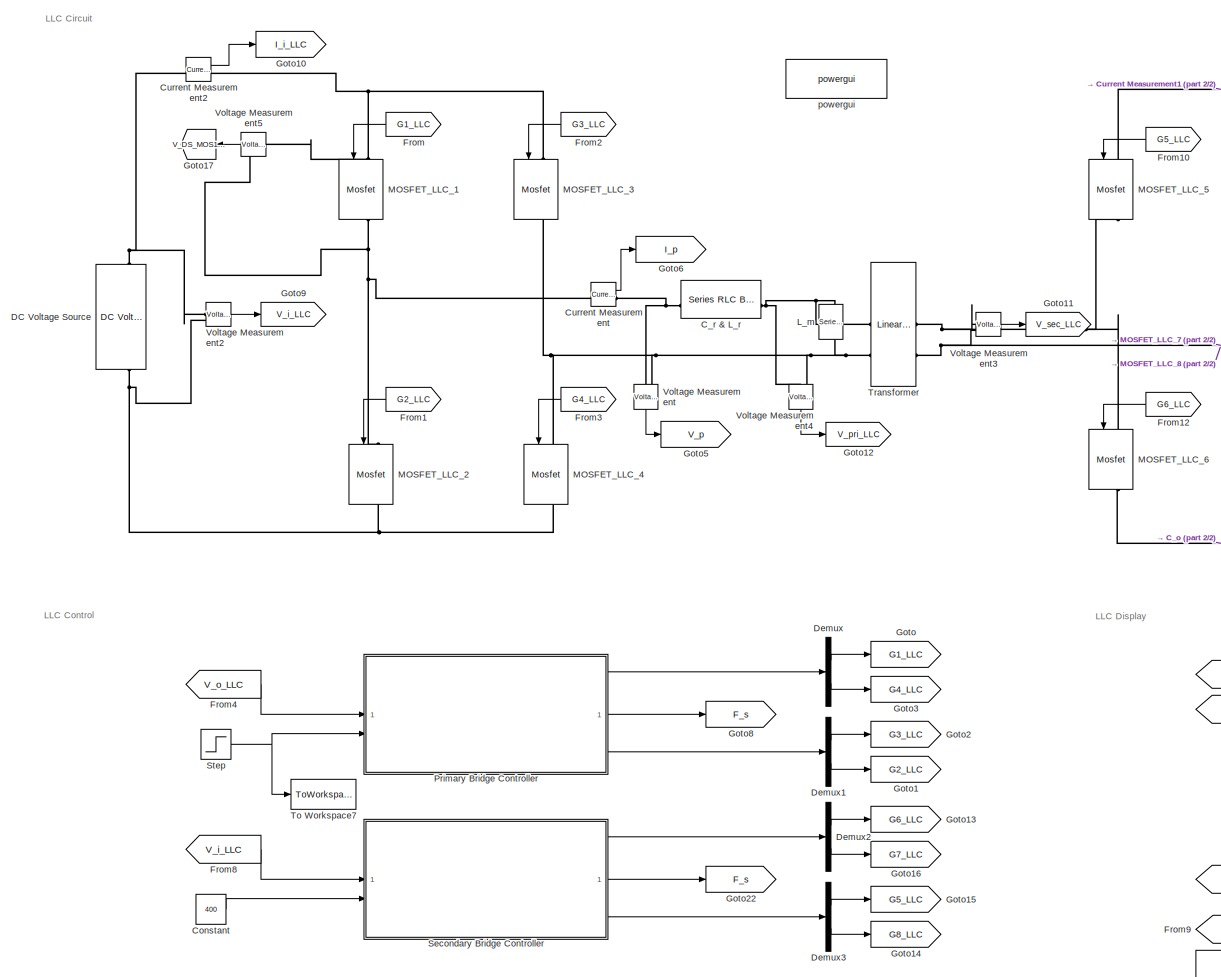
[diagram: root canvas - part 1/2, left side, full height]
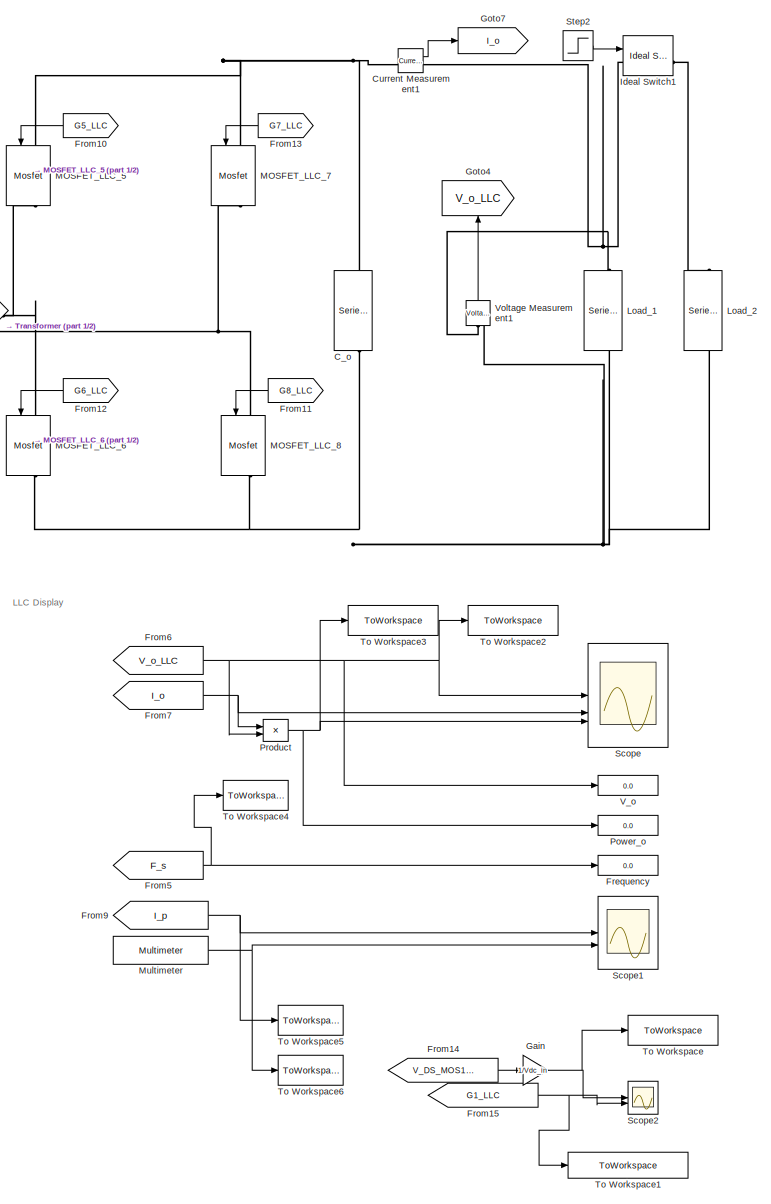
[diagram: root canvas - part 2/2, right side, full height]
MODEL slx_412a52aed63e
KIND model
CONFIG AbsTol = auto
CONFIG EnableMultiTasking = on
CONFIG FixedStep = Ts_Power
CONFIG MaxStep = auto
CONFIG MinStep = auto
CONFIG RelTol = 1e-3
CONFIG SampleTimeConstraint = Unconstrained
CONFIG SolverName = FixedStepDiscrete
CONFIG StartTime = 0.0
CONFIG StopTime = 0.3
BLOCK [Reference] C_o  REF=spsSeriesRLCBranchLib/Series RLC Branch
  LibrarySourceBlock = sps_lib/Passives/Series RLC Branch
  NameLocation = left
  SourceBlock = spsSeriesRLCBranchLib/Series RLC Branch
  SourceType = Series RLC Branch
BLOCK [Reference] C_r & L_r  REF=spsSeriesRLCBranchLib/Series RLC Branch
  LibrarySourceBlock = sps_lib/Passives/Series RLC Branch
  SourceBlock = spsSeriesRLCBranchLib/Series RLC Branch
  SourceType = Series RLC Branch
BLOCK [Constant] Constant
  Commented = on
  SampleTime = Ts_Power
  Value = 400
BLOCK [Reference] Current Measurement  REF=spsCurrentMeasurementLib/Current Measurement
  LibrarySourceBlock = sps_lib/Sensors and Measurements/Current Measurement
  SourceBlock = spsCurrentMeasurementLib/Current Measurement
  SourceType = Current Measurement
  UserDataPersistent = on
BLOCK [Reference] Current Measurement1  REF=spsCurrentMeasurementLib/Current Measurement
  LibrarySourceBlock = sps_lib/Sensors and Measurements/Current Measurement
  SourceBlock = spsCurrentMeasurementLib/Current Measurement
  SourceType = Current Measurement
  UserDataPersistent = on
BLOCK [Reference] Current Measurement2  REF=spsCurrentMeasurementLib/Current Measurement
  LibrarySourceBlock = sps_lib/Sensors and Measurements/Current Measurement
  SourceBlock = spsCurrentMeasurementLib/Current Measurement
  SourceType = Current Measurement
  UserDataPersistent = on
BLOCK [Reference] DC Voltage Source  REF=spsDCVoltageSourceLib/DC Voltage Source
  LibrarySourceBlock = sps_lib/Sources/DC Voltage Source
  SourceBlock = spsDCVoltageSourceLib/DC Voltage Source
  SourceType = DC Voltage Source
BLOCK [Demux] Demux
  Outputs = 2
BLOCK [Demux] Demux1
  Outputs = 2
BLOCK [Demux] Demux2
  Commented = on
  Outputs = 2
BLOCK [Demux] Demux3
  Commented = on
  Outputs = 2
BLOCK [Display] Frequency
  Decimation = 1
BLOCK [From] From
  GotoTag = G1_LLC
  NameLocation = top
BLOCK [From] From1
  GotoTag = G2_LLC
  NameLocation = top
BLOCK [From] From10
  Commented = on
  GotoTag = G5_LLC
  NameLocation = top
BLOCK [From] From11
  Commented = on
  GotoTag = G8_LLC
  NameLocation = top
BLOCK [From] From12
  Commented = on
  GotoTag = G6_LLC
  NameLocation = top
BLOCK [From] From13
  Commented = on
  GotoTag = G7_LLC
  NameLocation = top
BLOCK [From] From14
  GotoTag = V_DS_MOS1_LLC
BLOCK [From] From15
  GotoTag = G1_LLC
BLOCK [From] From2
  GotoTag = G3_LLC
  NameLocation = top
BLOCK [From] From3
  GotoTag = G4_LLC
  NameLocation = top
BLOCK [From] From4
  GotoTag = V_o_LLC
BLOCK [From] From5
  GotoTag = F_s
BLOCK [From] From6
  GotoTag = V_o_LLC
BLOCK [From] From7
  GotoTag = I_o
BLOCK [From] From8
  Commented = on
  GotoTag = V_i_LLC
BLOCK [From] From9
  GotoTag = I_p
BLOCK [Gain] Gain
  Gain = 1/Vdc_in
BLOCK [Goto] Goto
  GotoTag = G1_LLC
BLOCK [Goto] Goto1
  GotoTag = G2_LLC
BLOCK [Goto] Goto10
  GotoTag = I_i_LLC
BLOCK [Goto] Goto11
  GotoTag = V_sec_LLC
BLOCK [Goto] Goto12
  GotoTag = V_pri_LLC
BLOCK [Goto] Goto13
  Commented = on
  GotoTag = G6_LLC
BLOCK [Goto] Goto14
  Commented = on
  GotoTag = G8_LLC
BLOCK [Goto] Goto15
  Commented = on
  GotoTag = G5_LLC
BLOCK [Goto] Goto16
  Commented = on
  GotoTag = G7_LLC
BLOCK [Goto] Goto17
  GotoTag = V_DS_MOS1_LLC
  NameLocation = top
BLOCK [Goto] Goto2
  GotoTag = G3_LLC
BLOCK [Goto] Goto22
  Commented = on
  GotoTag = F_s
BLOCK [Goto] Goto3
  GotoTag = G4_LLC
BLOCK [Goto] Goto4
  GotoTag = V_o_LLC
  NameLocation = right
BLOCK [Goto] Goto5
  GotoTag = V_p
BLOCK [Goto] Goto6
  GotoTag = I_p
BLOCK [Goto] Goto7
  GotoTag = I_o
BLOCK [Goto] Goto8
  GotoTag = F_s
BLOCK [Goto] Goto9
  GotoTag = V_i_LLC
BLOCK [Reference] Ideal Switch1  REF=spsIdealSwitchLib/Ideal Switch
  SourceBlock = spsIdealSwitchLib/Ideal Switch
  SourceType = Ideal Switch
BLOCK [Reference] L_m  REF=spsSeriesRLCBranchLib/Series RLC Branch
  LibrarySourceBlock = sps_lib/Passives/Series RLC Branch
  NameLocation = left
  SourceBlock = spsSeriesRLCBranchLib/Series RLC Branch
  SourceType = Series RLC Branch
BLOCK [Reference] Load_1  REF=spsSeriesRLCBranchLib/Series RLC Branch
  LibrarySourceBlock = sps_lib/Passives/Series RLC Branch
  NameLocation = left
  SourceBlock = spsSeriesRLCBranchLib/Series RLC Branch
  SourceType = Series RLC Branch
BLOCK [Reference] Load_2  REF=spsSeriesRLCBranchLib/Series RLC Branch
  LibrarySourceBlock = sps_lib/Passives/Series RLC Branch
  NameLocation = left
  SourceBlock = spsSeriesRLCBranchLib/Series RLC Branch
  SourceType = Series RLC Branch
BLOCK [Reference] MOSFET_LLC_1  REF=spsMosfetLib/Mosfet
  LibrarySourceBlock = sps_lib/Power Electronics/Mosfet
  NameLocation = left
  SourceBlock = spsMosfetLib/Mosfet
  SourceType = Mosfet
BLOCK [Reference] MOSFET_LLC_2  REF=spsMosfetLib/Mosfet
  LibrarySourceBlock = sps_lib/Power Electronics/Mosfet
  NameLocation = left
  SourceBlock = spsMosfetLib/Mosfet
  SourceType = Mosfet
BLOCK [Reference] MOSFET_LLC_3  REF=spsMosfetLib/Mosfet
  LibrarySourceBlock = sps_lib/Power Electronics/Mosfet
  NameLocation = left
  SourceBlock = spsMosfetLib/Mosfet
  SourceType = Mosfet
BLOCK [Reference] MOSFET_LLC_4  REF=spsMosfetLib/Mosfet
  LibrarySourceBlock = sps_lib/Power Electronics/Mosfet
  NameLocation = left
  SourceBlock = spsMosfetLib/Mosfet
  SourceType = Mosfet
BLOCK [Reference] MOSFET_LLC_5  REF=spsMosfetLib/Mosfet
  LibrarySourceBlock = sps_lib/Power Electronics/Mosfet
  NameLocation = left
  SourceBlock = spsMosfetLib/Mosfet
  SourceType = Mosfet
BLOCK [Reference] MOSFET_LLC_6  REF=spsMosfetLib/Mosfet
  LibrarySourceBlock = sps_lib/Power Electronics/Mosfet
  NameLocation = left
  SourceBlock = spsMosfetLib/Mosfet
  SourceType = Mosfet
BLOCK [Reference] MOSFET_LLC_7  REF=spsMosfetLib/Mosfet
  LibrarySourceBlock = sps_lib/Power Electronics/Mosfet
  NameLocation = left
  SourceBlock = spsMosfetLib/Mosfet
  SourceType = Mosfet
BLOCK [Reference] MOSFET_LLC_8  REF=spsMosfetLib/Mosfet
  LibrarySourceBlock = sps_lib/Power Electronics/Mosfet
  NameLocation = left
  SourceBlock = spsMosfetLib/Mosfet
  SourceType = Mosfet
BLOCK [Reference] Multimeter  REF=spsMultimeterLib/Multimeter
  LibrarySourceBlock = sps_lib/Sensors and Measurements/Multimeter
  SourceBlock = spsMultimeterLib/Multimeter
  SourceType = Multimeter
BLOCK [Display] Power_o
  Decimation = 1
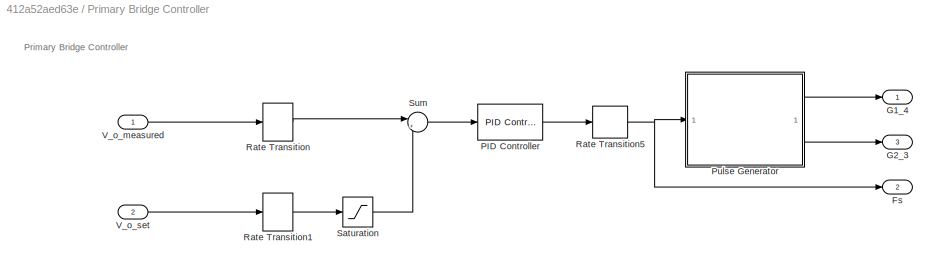
BLOCK [SubSystem] Primary Bridge Controller
BLOCK [Outport] Primary Bridge Controller/Fs
  Port = 2
BLOCK [Outport] Primary Bridge Controller/G1_4
BLOCK [Outport] Primary Bridge Controller/G2_3
  Port = 3
BLOCK [Reference] Primary Bridge Controller/PID Controller  REF=slpidlib/PID Controller
  LibrarySourceBlock = simulink/Continuous/PID Controller
  SourceBlock = slpidlib/PID Controller
  SourceType = PID 1dof
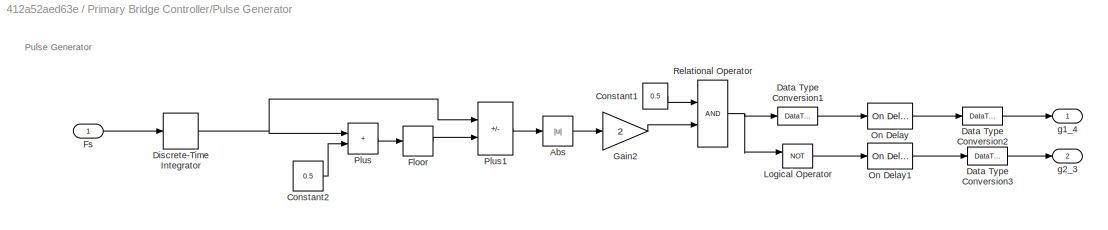
BLOCK [SubSystem] Primary Bridge Controller/Pulse Generator
BLOCK [Abs] Primary Bridge Controller/Pulse Generator/Abs
  SaturateOnIntegerOverflow = off
BLOCK [Constant] Primary Bridge Controller/Pulse Generator/Constant1
  Value = 0.5
BLOCK [Constant] Primary Bridge Controller/Pulse Generator/Constant2
  Value = 0.5
BLOCK [DataTypeConversion] Primary Bridge Controller/Pulse Generator/Data Type Conversion1
  OutDataTypeStr = double
  RndMeth = Floor
  SaturateOnIntegerOverflow = off
BLOCK [DataTypeConversion] Primary Bridge Controller/Pulse Generator/Data Type Conversion2
  OutDataTypeStr = double
  RndMeth = Floor
  SaturateOnIntegerOverflow = off
BLOCK [DataTypeConversion] Primary Bridge Controller/Pulse Generator/Data Type Conversion3
  OutDataTypeStr = double
  RndMeth = Floor
  SaturateOnIntegerOverflow = off
BLOCK [DiscreteIntegrator] Primary Bridge Controller/Pulse Generator/Discrete-Time Integrator
  ICPrevOutput = DiscIntNeverNeededParam
  ICPrevScaledInput = DiscIntNeverNeededParam
  InitialConditionSetting = Auto
  SampleTime = Ts_Power
BLOCK [Rounding] Primary Bridge Controller/Pulse Generator/Floor
BLOCK [Inport] Primary Bridge Controller/Pulse Generator/Fs
BLOCK [Gain] Primary Bridge Controller/Pulse Generator/Gain2
  Gain = 2
  OutDataTypeStr = Inherit: Same as input
  ParamDataTypeStr = Inherit: Same as input
  SaturateOnIntegerOverflow = on
BLOCK [Logic] Primary Bridge Controller/Pulse Generator/Logical Operator
  AllPortsSameDT = off
  Operator = NOT
  OutDataTypeStr = float('double')
BLOCK [Reference] Primary Bridge Controller/Pulse Generator/On Delay  REF=spsOnDelayLib/On Delay
  NameLocation = top
  SourceBlock = spsOnDelayLib/On Delay
  SourceType = On/Off Delay
BLOCK [Reference] Primary Bridge Controller/Pulse Generator/On Delay1  REF=spsOnDelayLib/On Delay
  NameLocation = top
  SourceBlock = spsOnDelayLib/On Delay
  SourceType = On/Off Delay
BLOCK [Sum] Primary Bridge Controller/Pulse Generator/Plus
  IconShape = rectangular
BLOCK [Sum] Primary Bridge Controller/Pulse Generator/Plus1
  IconShape = rectangular
  Inputs = +-
BLOCK [RelationalOperator] Primary Bridge Controller/Pulse Generator/Relational Operator
  InputSameDT = off
  OutDataTypeStr = boolean
BLOCK [Outport] Primary Bridge Controller/Pulse Generator/g1_4
  VectorParamsAs1DForOutWhenUnconnected = off
BLOCK [Outport] Primary Bridge Controller/Pulse Generator/g2_3
  Port = 2
  VectorParamsAs1DForOutWhenUnconnected = off
BLOCK [RateTransition] Primary Bridge Controller/Rate Transition
  OutPortSampleTime = Ts_Control
BLOCK [RateTransition] Primary Bridge Controller/Rate Transition1
  OutPortSampleTime = Ts_Control
BLOCK [RateTransition] Primary Bridge Controller/Rate Transition5
  InitialCondition = fs_LCC_min
  OutPortSampleTime = Ts_Power
BLOCK [Saturate] Primary Bridge Controller/Saturation
  LowerLimit = V_o_min
  UpperLimit = V_o_max
BLOCK [Sum] Primary Bridge Controller/Sum
  Inputs = |+-
BLOCK [Inport] Primary Bridge Controller/V_o_measured
BLOCK [Inport] Primary Bridge Controller/V_o_set
  Port = 2
BLOCK [Product] Product
BLOCK [Scope] Scope
  Floating = off
  NumInputPorts = 3
  ScopeSpecificationString = Simulink.scopes.TimeScopeBlockCfg('CurrentConfiguration', extmgr.ConfigurationSet(extmgr.Configuration('Core','General UI',true),extmgr.Configuration('Core','Source UI',true),extmgr.Configuration('Sources','WiredSimulink',true),extmgr.Configuration('Visuals','Time Domain',true,'SerializedDisplays',{struct('MinYLimReal','253.02473','MaxYLimReal','471.96113','YLabelReal','','MinYLimMag','253.02473',...<+3110ch>
BLOCK [Scope] Scope1
  Floating = off
  NumInputPorts = 2
  ScopeSpecificationString = Simulink.scopes.TimeScopeBlockCfg('CurrentConfiguration', extmgr.ConfigurationSet(extmgr.Configuration('Core','General UI',true),extmgr.Configuration('Core','Source UI',true),extmgr.Configuration('Sources','WiredSimulink',true,'DataLoggingVariableName','ScopeData1'),extmgr.Configuration('Visuals','Time Domain',true,'SerializedDisplays',{struct('MinYLimReal','-46.47559','MaxYLimReal','49.43409','YL...<+1590ch>
BLOCK [Scope] Scope2
  Floating = off
  NumInputPorts = 2
  ScopeSpecificationString = Simulink.scopes.TimeScopeBlockCfg('CurrentConfiguration', extmgr.ConfigurationSet(extmgr.Configuration('Core','General UI',true),extmgr.Configuration('Core','Source UI',true),extmgr.Configuration('Sources','WiredSimulink',true,'DataLoggingVariableName','ScopeData2'),extmgr.Configuration('Visuals','Time Domain',true,'SerializedDisplays',{struct('MinYLimReal','-0.13059','MaxYLimReal','1.1304','YLabe...<+1529ch>
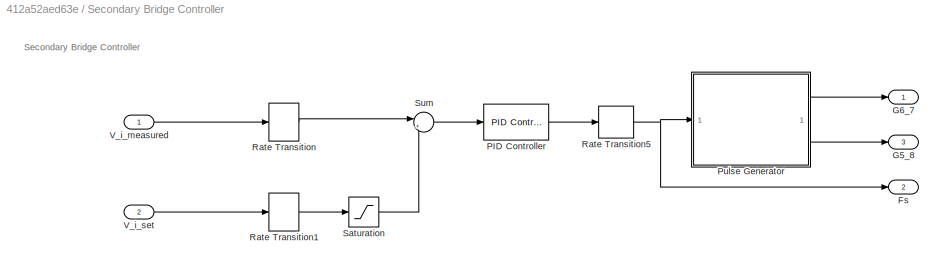
BLOCK [SubSystem] Secondary Bridge Controller
  Commented = on
BLOCK [Outport] Secondary Bridge Controller/Fs
  Port = 2
BLOCK [Outport] Secondary Bridge Controller/G5_8
  Port = 3
BLOCK [Outport] Secondary Bridge Controller/G6_7
BLOCK [Reference] Secondary Bridge Controller/PID Controller  REF=slpidlib/PID Controller
  LibrarySourceBlock = simulink/Continuous/PID Controller
  SourceBlock = slpidlib/PID Controller
  SourceType = PID 1dof
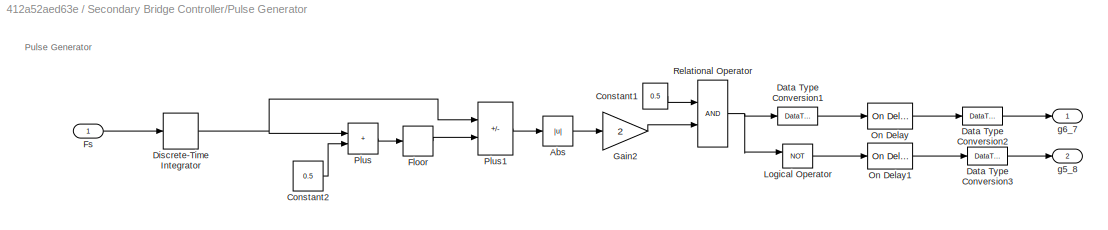
BLOCK [SubSystem] Secondary Bridge Controller/Pulse Generator
BLOCK [Abs] Secondary Bridge Controller/Pulse Generator/Abs
  SaturateOnIntegerOverflow = off
BLOCK [Constant] Secondary Bridge Controller/Pulse Generator/Constant1
  Value = 0.5
BLOCK [Constant] Secondary Bridge Controller/Pulse Generator/Constant2
  Value = 0.5
BLOCK [DataTypeConversion] Secondary Bridge Controller/Pulse Generator/Data Type Conversion1
  OutDataTypeStr = double
  RndMeth = Floor
  SaturateOnIntegerOverflow = off
BLOCK [DataTypeConversion] Secondary Bridge Controller/Pulse Generator/Data Type Conversion2
  OutDataTypeStr = double
  RndMeth = Floor
  SaturateOnIntegerOverflow = off
BLOCK [DataTypeConversion] Secondary Bridge Controller/Pulse Generator/Data Type Conversion3
  OutDataTypeStr = double
  RndMeth = Floor
  SaturateOnIntegerOverflow = off
BLOCK [DiscreteIntegrator] Secondary Bridge Controller/Pulse Generator/Discrete-Time Integrator
  ICPrevOutput = DiscIntNeverNeededParam
  ICPrevScaledInput = DiscIntNeverNeededParam
  InitialConditionSetting = Auto
  SampleTime = Ts_Power
BLOCK [Rounding] Secondary Bridge Controller/Pulse Generator/Floor
BLOCK [Inport] Secondary Bridge Controller/Pulse Generator/Fs
BLOCK [Gain] Secondary Bridge Controller/Pulse Generator/Gain2
  Gain = 2
  OutDataTypeStr = Inherit: Same as input
  ParamDataTypeStr = Inherit: Same as input
  SaturateOnIntegerOverflow = on
BLOCK [Logic] Secondary Bridge Controller/Pulse Generator/Logical Operator
  AllPortsSameDT = off
  Operator = NOT
  OutDataTypeStr = float('double')
BLOCK [Reference] Secondary Bridge Controller/Pulse Generator/On Delay  REF=spsOnDelayLib/On Delay
  NameLocation = top
  SourceBlock = spsOnDelayLib/On Delay
  SourceType = On/Off Delay
BLOCK [Reference] Secondary Bridge Controller/Pulse Generator/On Delay1  REF=spsOnDelayLib/On Delay
  NameLocation = top
  SourceBlock = spsOnDelayLib/On Delay
  SourceType = On/Off Delay
BLOCK [Sum] Secondary Bridge Controller/Pulse Generator/Plus
  IconShape = rectangular
BLOCK [Sum] Secondary Bridge Controller/Pulse Generator/Plus1
  IconShape = rectangular
  Inputs = +-
BLOCK [RelationalOperator] Secondary Bridge Controller/Pulse Generator/Relational Operator
  InputSameDT = off
  OutDataTypeStr = boolean
BLOCK [Outport] Secondary Bridge Controller/Pulse Generator/g5_8
  Port = 2
  VectorParamsAs1DForOutWhenUnconnected = off
BLOCK [Outport] Secondary Bridge Controller/Pulse Generator/g6_7
  VectorParamsAs1DForOutWhenUnconnected = off
BLOCK [RateTransition] Secondary Bridge Controller/Rate Transition
  OutPortSampleTime = Ts_Control
BLOCK [RateTransition] Secondary Bridge Controller/Rate Transition1
  OutPortSampleTime = Ts_Control
BLOCK [RateTransition] Secondary Bridge Controller/Rate Transition5
  InitialCondition = fs_LCC_min
  OutPortSampleTime = Ts_Power
BLOCK [Saturate] Secondary Bridge Controller/Saturation
  LowerLimit = V_o_min
  UpperLimit = V_o_max
BLOCK [Sum] Secondary Bridge Controller/Sum
  Inputs = |+-
BLOCK [Inport] Secondary Bridge Controller/V_i_measured
BLOCK [Inport] Secondary Bridge Controller/V_i_set
  Port = 2
BLOCK [Step] Step
  After = 450
  Before = 275
  SampleTime = Ts_Power
  Time = 0.1
BLOCK [Step] Step2
  NameLocation = top
  SampleTime = Ts_Power
  Time = 0.2
BLOCK [ToWorkspace] To Workspace
  FixptAsFi = on
  MaxDataPoints = inf
  SampleTime = -1
  SaveFormat = Structure With Time
  VariableName = V_DS_M1
BLOCK [ToWorkspace] To Workspace1
  FixptAsFi = on
  MaxDataPoints = inf
  SampleTime = -1
  SaveFormat = Structure With Time
  VariableName = V_GS_M1
BLOCK [ToWorkspace] To Workspace2
  FixptAsFi = on
  MaxDataPoints = inf
  SampleTime = -1
  SaveFormat = Structure With Time
  VariableName = V_o
BLOCK [ToWorkspace] To Workspace3
  FixptAsFi = on
  MaxDataPoints = inf
  SampleTime = -1
  SaveFormat = Structure With Time
  VariableName = P_o
BLOCK [ToWorkspace] To Workspace4
  FixptAsFi = on
  MaxDataPoints = inf
  SampleTime = -1
  SaveFormat = Structure With Time
  VariableName = F_s
BLOCK [ToWorkspace] To Workspace5
  FixptAsFi = on
  MaxDataPoints = inf
  SampleTime = -1
  SaveFormat = Structure With Time
  VariableName = I_r
BLOCK [ToWorkspace] To Workspace6
  FixptAsFi = on
  MaxDataPoints = inf
  SampleTime = -1
  SaveFormat = Structure With Time
  VariableName = I_m
BLOCK [ToWorkspace] To Workspace7
  FixptAsFi = on
  MaxDataPoints = inf
  SampleTime = -1
  SaveFormat = Structure With Time
  VariableName = V_ref
BLOCK [Reference] Transformer  REF=spsLinearTransformerLib/Linear Transformer
  LibrarySourceBlock = sps_lib/Power Grid Elements/Linear Transformer
  SourceBlock = spsLinearTransformerLib/Linear Transformer
  SourceType = Linear Transformer
BLOCK [Display] V_o
  Decimation = 1
BLOCK [Reference] Voltage Measurement  REF=spsVoltageMeasurementLib/Voltage Measurement
  LibrarySourceBlock = sps_lib/Sensors and Measurements/Voltage Measurement
  NameLocation = left
  SourceBlock = spsVoltageMeasurementLib/Voltage Measurement
  SourceType = Voltage Measurement
  UserDataPersistent = on
BLOCK [Reference] Voltage Measurement1  REF=spsVoltageMeasurementLib/Voltage Measurement
  LibrarySourceBlock = sps_lib/Sensors and Measurements/Voltage Measurement
  NameLocation = right
  SourceBlock = spsVoltageMeasurementLib/Voltage Measurement
  SourceType = Voltage Measurement
  UserDataPersistent = on
BLOCK [Reference] Voltage Measurement2  REF=spsVoltageMeasurementLib/Voltage Measurement
  LibrarySourceBlock = sps_lib/Sensors and Measurements/Voltage Measurement
  SourceBlock = spsVoltageMeasurementLib/Voltage Measurement
  SourceType = Voltage Measurement
  UserDataPersistent = on
BLOCK [Reference] Voltage Measurement3  REF=spsVoltageMeasurementLib/Voltage Measurement
  LibrarySourceBlock = sps_lib/Sensors and Measurements/Voltage Measurement
  SourceBlock = spsVoltageMeasurementLib/Voltage Measurement
  SourceType = Voltage Measurement
  UserDataPersistent = on
BLOCK [Reference] Voltage Measurement4  REF=spsVoltageMeasurementLib/Voltage Measurement
  LibrarySourceBlock = sps_lib/Sensors and Measurements/Voltage Measurement
  NameLocation = left
  SourceBlock = spsVoltageMeasurementLib/Voltage Measurement
  SourceType = Voltage Measurement
  UserDataPersistent = on
BLOCK [Reference] Voltage Measurement5  REF=spsVoltageMeasurementLib/Voltage Measurement
  LibrarySourceBlock = sps_lib/Sensors and Measurements/Voltage Measurement
  NameLocation = top
  SourceBlock = spsVoltageMeasurementLib/Voltage Measurement
  SourceType = Voltage Measurement
  UserDataPersistent = on
BLOCK [Reference] powergui  REF=spspowerguiLib/powergui
  Priority = 1
  SourceBlock = spspowerguiLib/powergui
  SourceType = PSB option menu block
ANNOTATION (root): LLC Circuit
ANNOTATION (root): LLC Control
ANNOTATION (root): LLC Display
ANNOTATION Primary Bridge Controller: Primary Bridge Controller
ANNOTATION Primary Bridge Controller/Pulse Generator: Pulse Generator
ANNOTATION Secondary Bridge Controller: Secondary Bridge Controller
ANNOTATION Secondary Bridge Controller/Pulse Generator: Pulse Generator
LINE Constant:1 -> Secondary Bridge Controller:2
LINE Current Measurement1:1 -> Goto7:1
LINE Current Measurement2:1 -> Goto10:1
LINE Current Measurement:1 -> Goto6:1
LINE Demux1:1 -> Goto2:1
LINE Demux1:2 -> Goto1:1
LINE Demux2:1 -> Goto13:1
LINE Demux2:2 -> Goto16:1
LINE Demux3:1 -> Goto15:1
LINE Demux3:2 -> Goto14:1
LINE Demux:1 -> Goto:1
LINE Demux:2 -> Goto3:1
LINE From10:1 -> MOSFET_LLC_5:1
LINE From11:1 -> MOSFET_LLC_8:1
LINE From12:1 -> MOSFET_LLC_6:1
LINE From13:1 -> MOSFET_LLC_7:1
LINE From14:1 -> Gain:1
NET From15:1 -> Scope2:2, To Workspace1:1
LINE From1:1 -> MOSFET_LLC_2:1
LINE From2:1 -> MOSFET_LLC_3:1
LINE From3:1 -> MOSFET_LLC_4:1
LINE From4:1 -> Primary Bridge Controller:1
NET From5:1 -> Frequency:1, To Workspace4:1
NET From6:1 -> Product:2, Scope:1, To Workspace2:1, V_o:1
NET From7:1 -> Product:1, Scope:2
LINE From8:1 -> Secondary Bridge Controller:1
NET From9:1 -> Scope1:1, To Workspace5:1
LINE From:1 -> MOSFET_LLC_1:1
NET Gain:1 -> Scope2:1, To Workspace:1
NET Multimeter:1 -> Scope1:2, To Workspace6:1
LINE Primary Bridge Controller/PID Controller:1 -> Primary Bridge Controller/Rate Transition5:1
LINE Primary Bridge Controller/Pulse Generator/Abs:1 -> Primary Bridge Controller/Pulse Generator/Gain2:1
LINE Primary Bridge Controller/Pulse Generator/Constant1:1 -> Primary Bridge Controller/Pulse Generator/Relational Operator:1
LINE Primary Bridge Controller/Pulse Generator/Constant2:1 -> Primary Bridge Controller/Pulse Generator/Plus:2
LINE Primary Bridge Controller/Pulse Generator/Data Type Conversion1:1 -> Primary Bridge Controller/Pulse Generator/On Delay:1
LINE Primary Bridge Controller/Pulse Generator/Data Type Conversion2:1 -> Primary Bridge Controller/Pulse Generator/g1_4:1
LINE Primary Bridge Controller/Pulse Generator/Data Type Conversion3:1 -> Primary Bridge Controller/Pulse Generator/g2_3:1
NET Primary Bridge Controller/Pulse Generator/Discrete-Time Integrator:1 -> Primary Bridge Controller/Pulse Generator/Plus1:1, Primary Bridge Controller/Pulse Generator/Plus:1
LINE Primary Bridge Controller/Pulse Generator/Floor:1 -> Primary Bridge Controller/Pulse Generator/Plus1:2
LINE Primary Bridge Controller/Pulse Generator/Fs:1 -> Primary Bridge Controller/Pulse Generator/Discrete-Time Integrator:1
LINE Primary Bridge Controller/Pulse Generator/Gain2:1 -> Primary Bridge Controller/Pulse Generator/Relational Operator:2
LINE Primary Bridge Controller/Pulse Generator/Logical Operator:1 -> Primary Bridge Controller/Pulse Generator/On Delay1:1
LINE Primary Bridge Controller/Pulse Generator/On Delay1:1 -> Primary Bridge Controller/Pulse Generator/Data Type Conversion3:1
LINE Primary Bridge Controller/Pulse Generator/On Delay:1 -> Primary Bridge Controller/Pulse Generator/Data Type Conversion2:1
LINE Primary Bridge Controller/Pulse Generator/Plus1:1 -> Primary Bridge Controller/Pulse Generator/Abs:1
LINE Primary Bridge Controller/Pulse Generator/Plus:1 -> Primary Bridge Controller/Pulse Generator/Floor:1
NET Primary Bridge Controller/Pulse Generator/Relational Operator:1 -> Primary Bridge Controller/Pulse Generator/Data Type Conversion1:1, Primary Bridge Controller/Pulse Generator/Logical Operator:1
LINE Primary Bridge Controller/Pulse Generator:1 -> Primary Bridge Controller/G1_4:1
LINE Primary Bridge Controller/Pulse Generator:2 -> Primary Bridge Controller/G2_3:1
LINE Primary Bridge Controller/Rate Transition1:1 -> Primary Bridge Controller/Saturation:1
NET Primary Bridge Controller/Rate Transition5:1 -> Primary Bridge Controller/Fs:1, Primary Bridge Controller/Pulse Generator:1
LINE Primary Bridge Controller/Rate Transition:1 -> Primary Bridge Controller/Sum:1
LINE Primary Bridge Controller/Saturation:1 -> Primary Bridge Controller/Sum:2
LINE Primary Bridge Controller/Sum:1 -> Primary Bridge Controller/PID Controller:1
LINE Primary Bridge Controller/V_o_measured:1 -> Primary Bridge Controller/Rate Transition:1
LINE Primary Bridge Controller/V_o_set:1 -> Primary Bridge Controller/Rate Transition1:1
LINE Primary Bridge Controller:1 -> Demux:1
LINE Primary Bridge Controller:2 -> Goto8:1
LINE Primary Bridge Controller:3 -> Demux1:1
NET Product:1 -> Power_o:1, Scope:3, To Workspace3:1
LINE Secondary Bridge Controller/PID Controller:1 -> Secondary Bridge Controller/Rate Transition5:1
LINE Secondary Bridge Controller/Pulse Generator/Abs:1 -> Secondary Bridge Controller/Pulse Generator/Gain2:1
LINE Secondary Bridge Controller/Pulse Generator/Constant1:1 -> Secondary Bridge Controller/Pulse Generator/Relational Operator:1
LINE Secondary Bridge Controller/Pulse Generator/Constant2:1 -> Secondary Bridge Controller/Pulse Generator/Plus:2
LINE Secondary Bridge Controller/Pulse Generator/Data Type Conversion1:1 -> Secondary Bridge Controller/Pulse Generator/On Delay:1
LINE Secondary Bridge Controller/Pulse Generator/Data Type Conversion2:1 -> Secondary Bridge Controller/Pulse Generator/g6_7:1
LINE Secondary Bridge Controller/Pulse Generator/Data Type Conversion3:1 -> Secondary Bridge Controller/Pulse Generator/g5_8:1
NET Secondary Bridge Controller/Pulse Generator/Discrete-Time Integrator:1 -> Secondary Bridge Controller/Pulse Generator/Plus1:1, Secondary Bridge Controller/Pulse Generator/Plus:1
LINE Secondary Bridge Controller/Pulse Generator/Floor:1 -> Secondary Bridge Controller/Pulse Generator/Plus1:2
LINE Secondary Bridge Controller/Pulse Generator/Fs:1 -> Secondary Bridge Controller/Pulse Generator/Discrete-Time Integrator:1
LINE Secondary Bridge Controller/Pulse Generator/Gain2:1 -> Secondary Bridge Controller/Pulse Generator/Relational Operator:2
LINE Secondary Bridge Controller/Pulse Generator/Logical Operator:1 -> Secondary Bridge Controller/Pulse Generator/On Delay1:1
LINE Secondary Bridge Controller/Pulse Generator/On Delay1:1 -> Secondary Bridge Controller/Pulse Generator/Data Type Conversion3:1
LINE Secondary Bridge Controller/Pulse Generator/On Delay:1 -> Secondary Bridge Controller/Pulse Generator/Data Type Conversion2:1
LINE Secondary Bridge Controller/Pulse Generator/Plus1:1 -> Secondary Bridge Controller/Pulse Generator/Abs:1
LINE Secondary Bridge Controller/Pulse Generator/Plus:1 -> Secondary Bridge Controller/Pulse Generator/Floor:1
NET Secondary Bridge Controller/Pulse Generator/Relational Operator:1 -> Secondary Bridge Controller/Pulse Generator/Data Type Conversion1:1, Secondary Bridge Controller/Pulse Generator/Logical Operator:1
LINE Secondary Bridge Controller/Pulse Generator:1 -> Secondary Bridge Controller/G6_7:1
LINE Secondary Bridge Controller/Pulse Generator:2 -> Secondary Bridge Controller/G5_8:1
LINE Secondary Bridge Controller/Rate Transition1:1 -> Secondary Bridge Controller/Saturation:1
NET Secondary Bridge Controller/Rate Transition5:1 -> Secondary Bridge Controller/Fs:1, Secondary Bridge Controller/Pulse Generator:1
LINE Secondary Bridge Controller/Rate Transition:1 -> Secondary Bridge Controller/Sum:1
LINE Secondary Bridge Controller/Saturation:1 -> Secondary Bridge Controller/Sum:2
LINE Secondary Bridge Controller/Sum:1 -> Secondary Bridge Controller/PID Controller:1
LINE Secondary Bridge Controller/V_i_measured:1 -> Secondary Bridge Controller/Rate Transition:1
LINE Secondary Bridge Controller/V_i_set:1 -> Secondary Bridge Controller/Rate Transition1:1
LINE Secondary Bridge Controller:1 -> Demux2:1
LINE Secondary Bridge Controller:2 -> Goto22:1
LINE Secondary Bridge Controller:3 -> Demux3:1
LINE Step2:1 -> Ideal Switch1:1
NET Step:1 -> Primary Bridge Controller:2, To Workspace7:1
LINE Voltage Measurement1:1 -> Goto4:1
LINE Voltage Measurement2:1 -> Goto9:1
LINE Voltage Measurement3:1 -> Goto11:1
LINE Voltage Measurement4:1 -> Goto12:1
LINE Voltage Measurement5:1 -> Goto17:1
LINE Voltage Measurement:1 -> Goto5:1
PNET net1: C_o:LConn1 -- Current Measurement1:LConn1 -- MOSFET_LLC_5:LConn1 -- MOSFET_LLC_7:LConn1
PNET net2: C_o:RConn1 -- Load_1:RConn1 -- Load_2:RConn1 -- MOSFET_LLC_6:RConn1 -- MOSFET_LLC_8:RConn1 -- Voltage Measurement1:LConn2
PNET net3: C_r & L_r:LConn1 -- Current Measurement:RConn1 -- Voltage Measurement:LConn1
PNET net4: C_r & L_r:RConn1 -- L_m:LConn1 -- Transformer:LConn1 -- Voltage Measurement4:LConn1
PNET net5: Current Measurement1:RConn1 -- Ideal Switch1:LConn1 -- Load_1:LConn1 -- Voltage Measurement1:LConn1
PNET net6: Current Measurement2:LConn1 -- DC Voltage Source:RConn1 -- Voltage Measurement2:LConn1
PNET net7: Current Measurement2:RConn1 -- MOSFET_LLC_1:LConn1 -- MOSFET_LLC_3:LConn1 -- Voltage Measurement5:LConn1
PNET net8: Current Measurement:LConn1 -- MOSFET_LLC_1:RConn1 -- MOSFET_LLC_2:LConn1 -- Voltage Measurement5:LConn2
PNET net9: DC Voltage Source:LConn1 -- MOSFET_LLC_2:RConn1 -- MOSFET_LLC_4:RConn1 -- Voltage Measurement2:LConn2
PLINE Ideal Switch1:RConn1 -- Load_2:LConn1
PNET net10: L_m:RConn1 -- MOSFET_LLC_3:RConn1 -- MOSFET_LLC_4:LConn1 -- Transformer:LConn2 -- Voltage Measurement4:LConn2 -- Voltage Measurement:LConn2
PNET net11: MOSFET_LLC_5:RConn1 -- MOSFET_LLC_6:LConn1 -- Transformer:RConn1 -- Voltage Measurement3:LConn1
PNET net12: MOSFET_LLC_7:RConn1 -- MOSFET_LLC_8:LConn1 -- Transformer:RConn2 -- Voltage Measurement3:LConn2
note: NET lines group one-source signal fan-out (src -> all destinations, sorted); 1:1 wires keep LINE; PNET lines group multi-terminal physical nets as a canonical sorted terminal list (undirected conserving connections); 2-terminal nets keep the pairwise PLINE form
